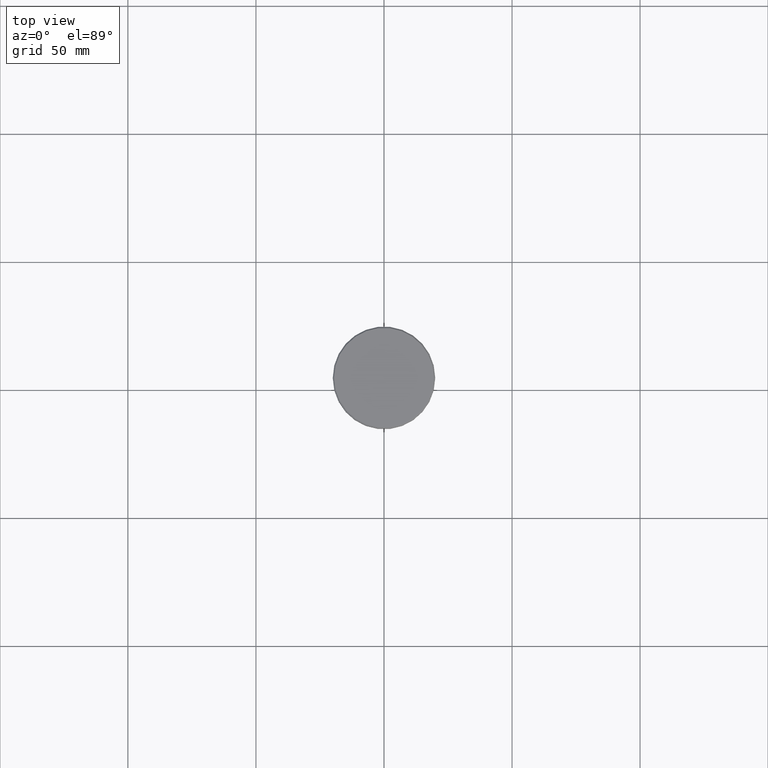
[diagram: clean part render]
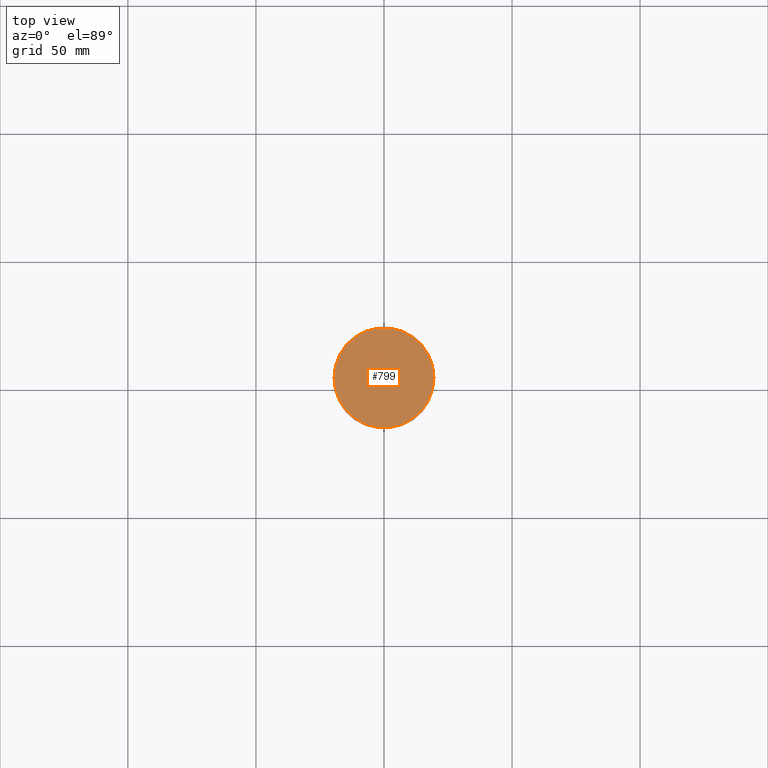
[diagram: same view with one face highlighted and labeled with its STEP entity id]
A machine part, top view. The second image highlights one B-rep face of the part: STEP entity #799.
In plain terms, the highlighted planar face has unit normal (0, -0, 1).
Its self-contained STEP definition (entity closure, byte-faithful):
#8 = CARTESIAN_POINT ( 'NONE',  ( 0.000000000000000000, 0.000000000000000000, 0.000000000000000000 ) ) ;
#87 = FACE_OUTER_BOUND ( 'NONE', #1035, .T. ) ;
#144 = VERTEX_POINT ( 'NONE', #1088 ) ;
#183 = DIRECTION ( 'NONE',  ( 1.000000000000000000, 0.000000000000000000, 0.000000000000000000 ) ) ;
#261 = PLANE ( 'NONE',  #1113 ) ;
#284 = DIRECTION ( 'NONE',  ( -0.000000000000000000, -0.000000000000000000, 1.000000000000000000 ) ) ;
#324 = DIRECTION ( 'NONE',  ( -0.000000000000000000, -0.000000000000000000, 1.000000000000000000 ) ) ;
#356 = CARTESIAN_POINT ( 'NONE',  ( 0.000000000000000000, 0.000000000000000000, 0.000000000000000000 ) ) ;
#425 = CARTESIAN_POINT ( 'NONE',  ( 0.000000000000000000, 0.000000000000000000, 0.000000000000000000 ) ) ;
#450 = DIRECTION ( 'NONE',  ( 0.000000000000000000, -0.000000000000000000, 1.000000000000000000 ) ) ;
#473 = AXIS2_PLACEMENT_3D ( 'NONE', #425, #324, #508 ) ;
#485 = DIRECTION ( 'NONE',  ( 1.000000000000000000, 0.000000000000000000, 0.000000000000000000 ) ) ;
#502 = VERTEX_POINT ( 'NONE', #636 ) ;
#508 = DIRECTION ( 'NONE',  ( 1.000000000000000000, 0.000000000000000000, 0.000000000000000000 ) ) ;
#636 = CARTESIAN_POINT ( 'NONE',  ( 19.50000000000004619, 2.418677428316025487E-15, 0.000000000000000000 ) ) ;
#640 = EDGE_CURVE ( 'NONE', #144, #502, #646, .T. ) ;
#646 = CIRCLE ( 'NONE', #1141, 19.50000000000004619 ) ;
#712 = EDGE_CURVE ( 'NONE', #502, #144, #1077, .T. ) ;
#799 = ADVANCED_FACE ( 'NONE', ( #87 ), #261, .T. ) ;
#947 = ORIENTED_EDGE ( 'NONE', *, *, #640, .T. ) ;
#1035 = EDGE_LOOP ( 'NONE', ( #947, #1063 ) ) ;
#1063 = ORIENTED_EDGE ( 'NONE', *, *, #712, .T. ) ;
#1077 = CIRCLE ( 'NONE', #473, 19.50000000000004619 ) ;
#1088 = CARTESIAN_POINT ( 'NONE',  ( -19.50000000000004619, 0.000000000000000000, 0.000000000000000000 ) ) ;
#1113 = AXIS2_PLACEMENT_3D ( 'NONE', #356, #450, #183 ) ;
#1141 = AXIS2_PLACEMENT_3D ( 'NONE', #8, #284, #485 ) ;